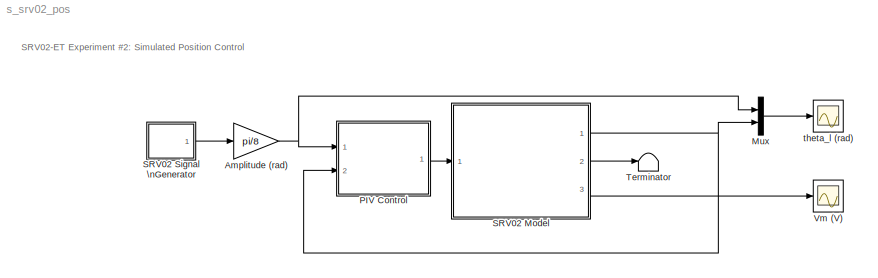
MODEL s_srv02_pos
KIND model
BLOCK [Gain] Amplitude (rad)
  Gain = pi/8
BLOCK [Mux] Mux
  DisplayOption = bar
  Inputs = 2
  Ports = [2, 1]
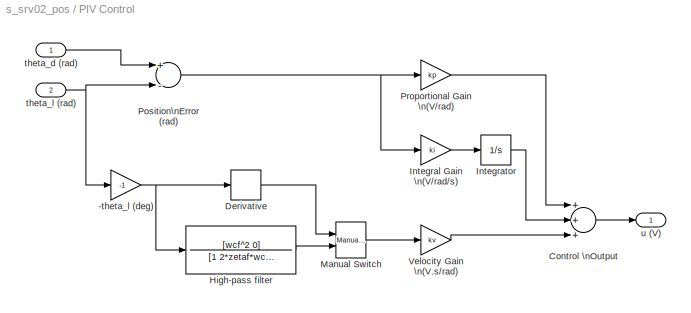
BLOCK [SubSystem] PIV Control
  FunctionWithSeparateData = off
  MaskHideContents = off
  MinAlgLoopOccurrences = off
  Ports = [2, 1]
  RTWSystemCode = Auto
BLOCK [Gain] PIV Control/-theta_l (deg)
  Gain = -1
  OutDataTypeMode = Inherit via internal rule
  ParameterDataTypeMode = Inherit via internal rule
  SaturateOnIntegerOverflow = off
BLOCK [Sum] PIV Control/Control \nOutput
  CollapseMode = All dimensions
  InputSameDT = off
  Inputs = +++
  OutDataTypeMode = Inherit via internal rule
  OutScaling = 2^-10
  Ports = [3, 1]
  SaturateOnIntegerOverflow = off
BLOCK [Derivative] PIV Control/Derivative
BLOCK [TransferFcn] PIV Control/High-pass filter
  Denominator = [1 2*zetaf*wcf wcf^2]
  Numerator = [wcf^2 0]
BLOCK [Gain] PIV Control/Integral Gain \n(V//rad//s)
  Gain = ki
  OutDataTypeMode = Inherit via internal rule
  ParameterDataTypeMode = Inherit via internal rule
  SaturateOnIntegerOverflow = off
BLOCK [Integrator] PIV Control/Integrator
  IgnoreLimit = off
  Ports = [1, 1]
BLOCK [Reference] PIV Control/Manual Switch  REF=simulink/Signal\nRouting/Manual Switch
  FunctionWithSeparateData = off
  Ports = [2, 1]
  RTWMemSecDataConstants = Inherit from model
  RTWMemSecDataInternal = Inherit from model
  RTWMemSecDataParameters = Inherit from model
  RTWMemSecFuncExecute = Inherit from model
  RTWMemSecFuncInitTerm = Inherit from model
  ShowPortLabels = FromPortIcon
  SourceBlock = simulink/Signal\nRouting/Manual Switch
  SourceType = Manual Switch
  SystemSampleTime = -1
  action = 0
  sw = 1
  varsize = off
BLOCK [Sum] PIV Control/Position\nError (rad)
  CollapseMode = All dimensions
  InputSameDT = off
  Inputs = +-
  OutDataTypeMode = Inherit via internal rule
  OutScaling = 2^-10
  Ports = [2, 1]
  SaturateOnIntegerOverflow = off
BLOCK [Gain] PIV Control/Proportional Gain \n(V//rad)
  Gain = kp
  OutDataTypeMode = Inherit via internal rule
  ParameterDataTypeMode = Inherit via internal rule
  SaturateOnIntegerOverflow = off
BLOCK [Gain] PIV Control/Velocity Gain \n(V.s//rad)
  Gain = kv
  OutDataTypeMode = Inherit via internal rule
  ParameterDataTypeMode = Inherit via internal rule
  SaturateOnIntegerOverflow = off
BLOCK [Inport] PIV Control/theta_d (rad)
  IconDisplay = Port number
BLOCK [Inport] PIV Control/theta_l (rad)
  IconDisplay = Port number
  Port = 2
BLOCK [Outport] PIV Control/u (V)
  BusOutputAsStruct = off
  IconDisplay = Port number
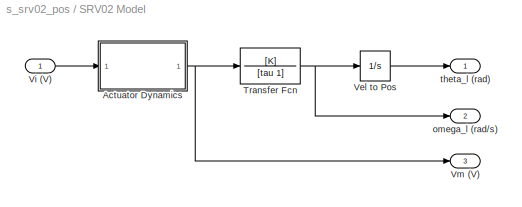
BLOCK [SubSystem] SRV02 Model
  FunctionWithSeparateData = off
  MaskHideContents = off
  MinAlgLoopOccurrences = off
  Ports = [1, 3]
  RTWSystemCode = Auto
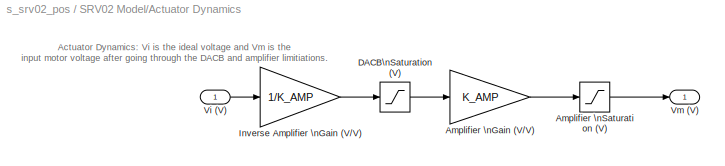
BLOCK [SubSystem] SRV02 Model/Actuator Dynamics
  FunctionWithSeparateData = off
  MaskHideContents = off
  MinAlgLoopOccurrences = off
  Ports = [1, 1]
  RTWSystemCode = Auto
BLOCK [Gain] SRV02 Model/Actuator Dynamics/Amplifier \nGain (V//V)
  Gain = K_AMP
  OutDataTypeMode = Inherit via internal rule
  ParameterDataTypeMode = Inherit via internal rule
  SaturateOnIntegerOverflow = off
BLOCK [Saturate] SRV02 Model/Actuator Dynamics/Amplifier \nSaturation (V)
  LowerLimit = -VMAX_AMP
  UpperLimit = VMAX_AMP
BLOCK [Saturate] SRV02 Model/Actuator Dynamics/DACB\nSaturation (V)
  LowerLimit = -VMAX_DAC
  UpperLimit = VMAX_DAC
BLOCK [Gain] SRV02 Model/Actuator Dynamics/Inverse Amplifier \nGain (V//V)
  Gain = 1/K_AMP
  OutDataTypeMode = Inherit via internal rule
  ParameterDataTypeMode = Inherit via internal rule
  SaturateOnIntegerOverflow = off
BLOCK [Inport] SRV02 Model/Actuator Dynamics/Vi (V)
  IconDisplay = Port number
BLOCK [Outport] SRV02 Model/Actuator Dynamics/Vm (V)
  BusOutputAsStruct = off
  IconDisplay = Port number
BLOCK [TransferFcn] SRV02 Model/Transfer Fcn
  Denominator = [tau 1]
  Numerator = [K]
BLOCK [Integrator] SRV02 Model/Vel to Pos
  IgnoreLimit = off
  Ports = [1, 1]
BLOCK [Inport] SRV02 Model/Vi (V)
  IconDisplay = Port number
BLOCK [Outport] SRV02 Model/Vm (V)
  BusOutputAsStruct = off
  IconDisplay = Port number
  Port = 3
BLOCK [Outport] SRV02 Model/omega_l (rad//s)
  BusOutputAsStruct = off
  IconDisplay = Port number
  Port = 2
BLOCK [Outport] SRV02 Model/theta_l (rad)
  BusOutputAsStruct = off
  IconDisplay = Port number
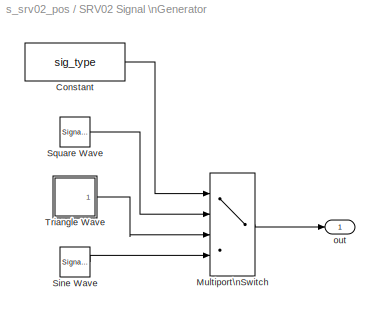
BLOCK [SubSystem] SRV02 Signal \nGenerator
  FunctionWithSeparateData = off
  MaskCallbackString = ||
  MaskDescription = Generates a square, triangular,  or sinusoidal waveform of a specified amplitude and frequency.
  MaskDisplay = plot([0 1 1 2 2 3 4 5 6], [-1 -1 1 1 -1 -1 1 -1 -1])
  MaskEnableString = on,on,on
  MaskHelp = Choose the type of signal to be generated from the drop-down \"Signal Type\" box. Enter the amplitude and the frequency desired for the signal. Note: frequency is in Hertz.
  MaskHideContents = off
  MaskIconFrame = on
  MaskIconOpaque = on
  MaskIconRotate = none
  MaskIconUnits = autoscale
  MaskPromptString = Signal Type|Amplitude|Frequency (Hz)
  MaskStyleString = popup(square|triangle|sine),edit,edit
  MaskTabNameString = ,,
  MaskToolTipString = on,on,on
  MaskTunableValueString = on,on,on
  MaskType = QET Signal Generator
  MaskValueString = square|1|0.4
  MaskVarAliasString = ,,
  MaskVariables = sig_type=@1;a=@2;f=@3;
  MaskVisibilityString = on,on,on
  MinAlgLoopOccurrences = off
  Ports = [0, 1]
  RTWSystemCode = Auto
BLOCK [Constant] SRV02 Signal \nGenerator/Constant
  Value = sig_type
BLOCK [MultiPortSwitch] SRV02 Signal \nGenerator/Multiport\nSwitch
  InputSameDT = off
  Inputs = 3
  Ports = [4, 1]
  SaturateOnIntegerOverflow = off
BLOCK [SignalGenerator] SRV02 Signal \nGenerator/Sine Wave
  Amplitude = a
  Frequency = f
  Ports = [0, 1]
BLOCK [SignalGenerator] SRV02 Signal \nGenerator/Square Wave
  Amplitude = a
  Frequency = f
  Ports = [0, 1]
  WaveForm = square
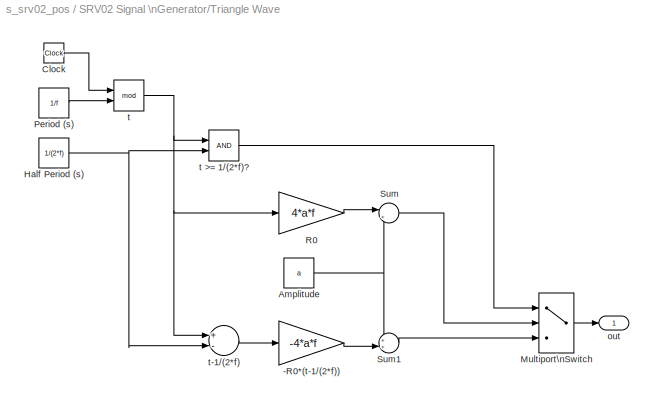
BLOCK [SubSystem] SRV02 Signal \nGenerator/Triangle Wave
  FunctionWithSeparateData = off
  MaskHideContents = off
  MinAlgLoopOccurrences = off
  Ports = [0, 1]
  RTWSystemCode = Auto
BLOCK [Gain] SRV02 Signal \nGenerator/Triangle Wave/-R0*(t-1//(2*f))
  Gain = -4*a*f
  OutDataTypeMode = Inherit via internal rule
  ParameterDataTypeMode = Inherit via internal rule
  SaturateOnIntegerOverflow = off
BLOCK [Constant] SRV02 Signal \nGenerator/Triangle Wave/Amplitude
  Value = a
BLOCK [Clock] SRV02 Signal \nGenerator/Triangle Wave/Clock
  Decimation = 10
BLOCK [Constant] SRV02 Signal \nGenerator/Triangle Wave/Half Period (s)
  Value = 1/(2*f)
BLOCK [MultiPortSwitch] SRV02 Signal \nGenerator/Triangle Wave/Multiport\nSwitch
  InputSameDT = off
  Inputs = 2
  Ports = [3, 1]
  SaturateOnIntegerOverflow = off
  zeroidx = on
BLOCK [Constant] SRV02 Signal \nGenerator/Triangle Wave/Period (s)
  Value = 1/f
BLOCK [Gain] SRV02 Signal \nGenerator/Triangle Wave/R0
  Gain = 4*a*f
  OutDataTypeMode = Inherit via internal rule
  ParameterDataTypeMode = Inherit via internal rule
  SaturateOnIntegerOverflow = off
BLOCK [Sum] SRV02 Signal \nGenerator/Triangle Wave/Sum
  CollapseMode = All dimensions
  IconShape = round
  InputSameDT = off
  Inputs = |+-
  OutDataTypeMode = Inherit via internal rule
  Ports = [2, 1]
  SaturateOnIntegerOverflow = off
BLOCK [Sum] SRV02 Signal \nGenerator/Triangle Wave/Sum1
  CollapseMode = All dimensions
  IconShape = round
  InputSameDT = off
  Inputs = ++|
  OutDataTypeMode = Inherit via internal rule
  Ports = [2, 1]
  SaturateOnIntegerOverflow = off
BLOCK [Outport] SRV02 Signal \nGenerator/Triangle Wave/out
  BusOutputAsStruct = off
  IconDisplay = Port number
BLOCK [Math] SRV02 Signal \nGenerator/Triangle Wave/t
  Operator = mod
  Ports = [2, 1]
BLOCK [RelationalOperator] SRV02 Signal \nGenerator/Triangle Wave/t >= 1//(2*f)?
  InputSameDT = off
  LogicOutDataTypeMode = Boolean
BLOCK [Sum] SRV02 Signal \nGenerator/Triangle Wave/t-1//(2*f)
  CollapseMode = All dimensions
  InputSameDT = off
  Inputs = +-
  OutDataTypeMode = Inherit via internal rule
  OutScaling = 2^-10
  Ports = [2, 1]
  SaturateOnIntegerOverflow = off
BLOCK [Outport] SRV02 Signal \nGenerator/out
  BusOutputAsStruct = off
  IconDisplay = Port number
BLOCK [Terminator] Terminator
BLOCK [Scope] Vm (V)
  DataFormat = Array
  Floating = off
  LimitDataPoints = off
  NumInputPorts = 1
  Ports = [1]
  SampleTime = 0
  SaveName = data_vm
  SaveToWorkspace = on
  TimeRange = 5
  YMax = 10
  YMin = -10
BLOCK [Scope] theta_l (rad)
  DataFormat = Array
  Floating = off
  LimitDataPoints = off
  NumInputPorts = 1
  Ports = [1]
  SampleTime = 0
  SaveName = data_pos
  SaveToWorkspace = on
  TimeRange = 5
  YMax = 1
  YMin = -1
ANNOTATION (root): SRV02-ET Experiment #2: Simulated Position Control
ANNOTATION SRV02 Model/Actuator Dynamics: Actuator Dynamics: Vi is the ideal voltage and Vm is the \ninput motor voltage after going through the DACB and amplifier limitiations.
NET Amplitude (rad):1 -> Mux:1, PIV Control:1
LINE Mux:1 -> theta_l (rad):1
NET PIV Control/-theta_l (deg):1 -> PIV Control/Derivative:1, PIV Control/High-pass filter:1
LINE PIV Control/Control \nOutput:1 -> PIV Control/u (V):1
LINE PIV Control/Derivative:1 -> PIV Control/Manual Switch:1
LINE PIV Control/High-pass filter:1 -> PIV Control/Manual Switch:2
LINE PIV Control/Integral Gain \n(V//rad//s):1 -> PIV Control/Integrator:1
LINE PIV Control/Integrator:1 -> PIV Control/Control \nOutput:2
LINE PIV Control/Manual Switch:1 -> PIV Control/Velocity Gain \n(V.s//rad):1
NET PIV Control/Position\nError (rad):1 -> PIV Control/Integral Gain \n(V//rad//s):1, PIV Control/Proportional Gain \n(V//rad):1
LINE PIV Control/Proportional Gain \n(V//rad):1 -> PIV Control/Control \nOutput:1
LINE PIV Control/Velocity Gain \n(V.s//rad):1 -> PIV Control/Control \nOutput:3
LINE PIV Control/theta_d (rad):1 -> PIV Control/Position\nError (rad):1
NET PIV Control/theta_l (rad):1 -> PIV Control/-theta_l (deg):1, PIV Control/Position\nError (rad):2
LINE PIV Control:1 -> SRV02 Model:1
LINE SRV02 Model/Actuator Dynamics/Amplifier \nGain (V//V):1 -> SRV02 Model/Actuator Dynamics/Amplifier \nSaturation (V):1
LINE SRV02 Model/Actuator Dynamics/Amplifier \nSaturation (V):1 -> SRV02 Model/Actuator Dynamics/Vm (V):1
LINE SRV02 Model/Actuator Dynamics/DACB\nSaturation (V):1 -> SRV02 Model/Actuator Dynamics/Amplifier \nGain (V//V):1
LINE SRV02 Model/Actuator Dynamics/Inverse Amplifier \nGain (V//V):1 -> SRV02 Model/Actuator Dynamics/DACB\nSaturation (V):1
LINE SRV02 Model/Actuator Dynamics/Vi (V):1 -> SRV02 Model/Actuator Dynamics/Inverse Amplifier \nGain (V//V):1
NET SRV02 Model/Actuator Dynamics:1 -> SRV02 Model/Transfer Fcn:1, SRV02 Model/Vm (V):1
NET SRV02 Model/Transfer Fcn:1 -> SRV02 Model/Vel to Pos:1, SRV02 Model/omega_l (rad//s):1
LINE SRV02 Model/Vel to Pos:1 -> SRV02 Model/theta_l (rad):1
LINE SRV02 Model/Vi (V):1 -> SRV02 Model/Actuator Dynamics:1
NET SRV02 Model:1 -> Mux:2, PIV Control:2
LINE SRV02 Model:2 -> Terminator:1
LINE SRV02 Model:3 -> Vm (V):1
LINE SRV02 Signal \nGenerator/Constant:1 -> SRV02 Signal \nGenerator/Multiport\nSwitch:1
LINE SRV02 Signal \nGenerator/Multiport\nSwitch:1 -> SRV02 Signal \nGenerator/out:1
LINE SRV02 Signal \nGenerator/Sine Wave:1 -> SRV02 Signal \nGenerator/Multiport\nSwitch:4
LINE SRV02 Signal \nGenerator/Square Wave:1 -> SRV02 Signal \nGenerator/Multiport\nSwitch:2
LINE SRV02 Signal \nGenerator/Triangle Wave/-R0*(t-1//(2*f)):1 -> SRV02 Signal \nGenerator/Triangle Wave/Sum1:2
NET SRV02 Signal \nGenerator/Triangle Wave/Amplitude:1 -> SRV02 Signal \nGenerator/Triangle Wave/Sum1:1, SRV02 Signal \nGenerator/Triangle Wave/Sum:2
LINE SRV02 Signal \nGenerator/Triangle Wave/Clock:1 -> SRV02 Signal \nGenerator/Triangle Wave/t:1
NET SRV02 Signal \nGenerator/Triangle Wave/Half Period (s):1 -> SRV02 Signal \nGenerator/Triangle Wave/t >= 1//(2*f)?:2, SRV02 Signal \nGenerator/Triangle Wave/t-1//(2*f):2
LINE SRV02 Signal \nGenerator/Triangle Wave/Multiport\nSwitch:1 -> SRV02 Signal \nGenerator/Triangle Wave/out:1
LINE SRV02 Signal \nGenerator/Triangle Wave/Period (s):1 -> SRV02 Signal \nGenerator/Triangle Wave/t:2
LINE SRV02 Signal \nGenerator/Triangle Wave/R0:1 -> SRV02 Signal \nGenerator/Triangle Wave/Sum:1
LINE SRV02 Signal \nGenerator/Triangle Wave/Sum1:1 -> SRV02 Signal \nGenerator/Triangle Wave/Multiport\nSwitch:3
LINE SRV02 Signal \nGenerator/Triangle Wave/Sum:1 -> SRV02 Signal \nGenerator/Triangle Wave/Multiport\nSwitch:2
LINE SRV02 Signal \nGenerator/Triangle Wave/t >= 1//(2*f)?:1 -> SRV02 Signal \nGenerator/Triangle Wave/Multiport\nSwitch:1
LINE SRV02 Signal \nGenerator/Triangle Wave/t-1//(2*f):1 -> SRV02 Signal \nGenerator/Triangle Wave/-R0*(t-1//(2*f)):1
NET SRV02 Signal \nGenerator/Triangle Wave/t:1 -> SRV02 Signal \nGenerator/Triangle Wave/R0:1, SRV02 Signal \nGenerator/Triangle Wave/t >= 1//(2*f)?:1, SRV02 Signal \nGenerator/Triangle Wave/t-1//(2*f):1
LINE SRV02 Signal \nGenerator/Triangle Wave:1 -> SRV02 Signal \nGenerator/Multiport\nSwitch:3
LINE SRV02 Signal \nGenerator:1 -> Amplitude (rad):1
note: NET lines group one-source signal fan-out (src -> all destinations, sorted); 1:1 wires keep LINE
